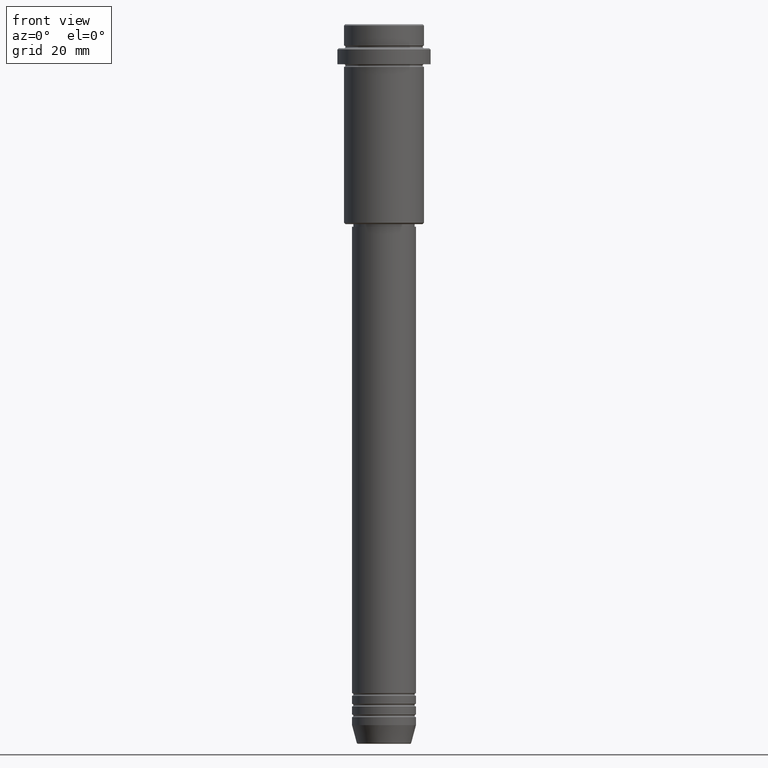
[diagram: clean part render]
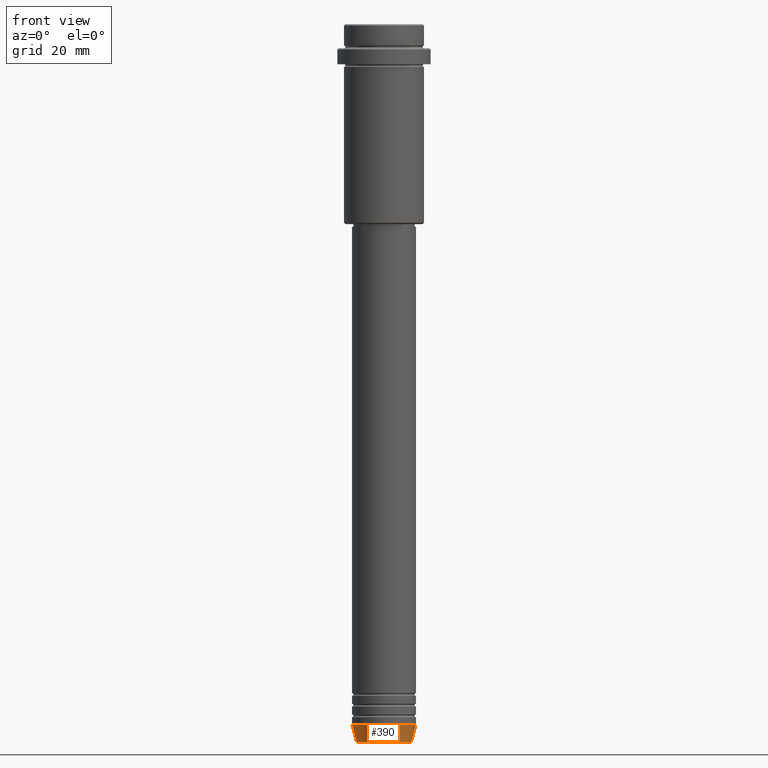
[diagram: same view with one face highlighted and labeled with its STEP entity id]
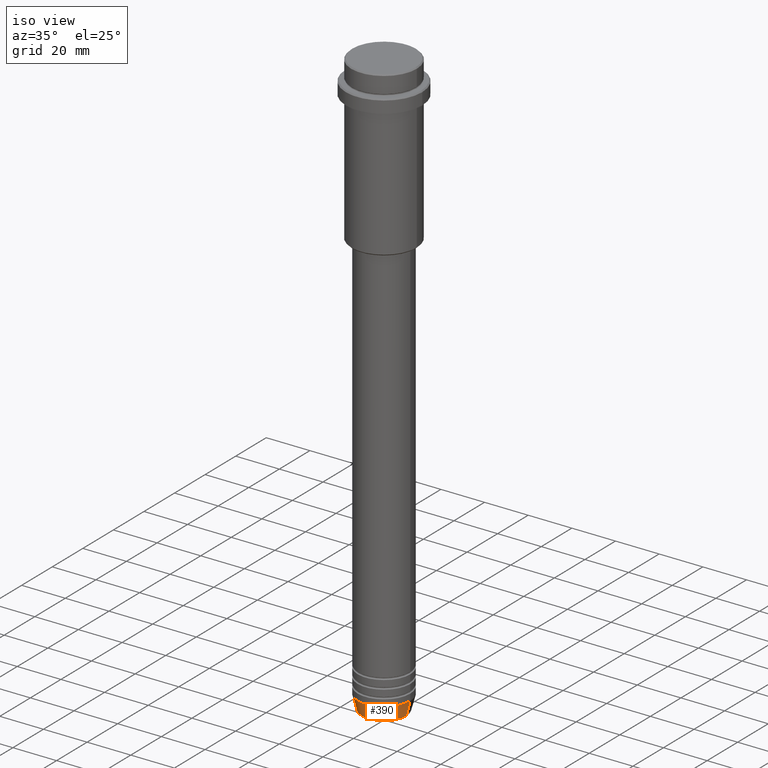
[diagram: same view with one face highlighted and labeled with its STEP entity id]
A machine part, front view. The second image highlights one B-rep face of the part: STEP entity #390.
A second angle (iso view) of the same face is appended — the face is thin or edge-on in the first view.
In plain terms, the highlighted conical surface has half-angle 15 deg.
Its self-contained STEP definition (entity closure, byte-faithful):
#15 = CIRCLE ( 'NONE', #681, 12.00000000000000000 ) ;
#82 = DIRECTION ( 'NONE',  ( 1.000000000000000000, 0.000000000000000000, 0.000000000000000000 ) ) ;
#112 = DIRECTION ( 'NONE',  ( 1.000000000000000000, 0.000000000000000000, 0.000000000000000000 ) ) ;
#117 = CARTESIAN_POINT ( 'NONE',  ( 0.000000000000000000, 0.000000000000000000, -269.6294095225512706 ) ) ;
#122 = CARTESIAN_POINT ( 'NONE',  ( -12.00000000000000000, 1.469576158976823947E-15, -263.0000000000000000 ) ) ;
#245 = DIRECTION ( 'NONE',  ( 0.2588190451025213501, 0.000000000000000000, 0.9659258262890680902 ) ) ;
#321 = DIRECTION ( 'NONE',  ( -0.000000000000000000, -0.000000000000000000, 1.000000000000000000 ) ) ;
#322 = ORIENTED_EDGE ( 'NONE', *, *, #897, .F. ) ;
#359 = CARTESIAN_POINT ( 'NONE',  ( 12.00000000000000000, 0.000000000000000000, -263.0000000000000000 ) ) ;
#390 = ADVANCED_FACE ( 'NONE', ( #1314 ), #1262, .T. ) ;
#421 = CARTESIAN_POINT ( 'NONE',  ( 0.000000000000000000, 0.000000000000000000, -263.0000000000000000 ) ) ;
#437 = VERTEX_POINT ( 'NONE', #986 ) ;
#481 = EDGE_CURVE ( 'NONE', #823, #437, #987, .T. ) ;
#533 = DIRECTION ( 'NONE',  ( 1.000000000000000000, 0.000000000000000000, 0.000000000000000000 ) ) ;
#667 = LINE ( 'NONE', #359, #1077 ) ;
#681 = AXIS2_PLACEMENT_3D ( 'NONE', #421, #1052, #82 ) ;
#687 = CARTESIAN_POINT ( 'NONE',  ( -12.00000000000000000, 1.469576158976823947E-15, -263.0000000000000000 ) ) ;
#785 = EDGE_CURVE ( 'NONE', #937, #1291, #15, .T. ) ;
#791 = DIRECTION ( 'NONE',  ( -0.2588190451025213501, 3.169619151431772337E-17, 0.9659258262890680902 ) ) ;
#823 = VERTEX_POINT ( 'NONE', #1070 ) ;
#875 = DIRECTION ( 'NONE',  ( -0.000000000000000000, -0.000000000000000000, 1.000000000000000000 ) ) ;
#897 = EDGE_CURVE ( 'NONE', #823, #937, #1005, .T. ) ;
#909 = EDGE_CURVE ( 'NONE', #437, #1291, #667, .T. ) ;
#937 = VERTEX_POINT ( 'NONE', #122 ) ;
#978 = CARTESIAN_POINT ( 'NONE',  ( 12.00000000000000000, 0.000000000000000000, -263.0000000000000000 ) ) ;
#986 = CARTESIAN_POINT ( 'NONE',  ( 10.22365507213719127, 0.000000000000000000, -269.6294095225512706 ) ) ;
#987 = CIRCLE ( 'NONE', #1285, 10.22365507213719127 ) ;
#1004 = EDGE_LOOP ( 'NONE', ( #322, #1394, #1145, #1250 ) ) ;
#1005 = LINE ( 'NONE', #687, #1156 ) ;
#1052 = DIRECTION ( 'NONE',  ( -0.000000000000000000, -0.000000000000000000, 1.000000000000000000 ) ) ;
#1070 = CARTESIAN_POINT ( 'NONE',  ( -10.22365507213719127, 1.360806402472382744E-15, -269.6294095225512706 ) ) ;
#1077 = VECTOR ( 'NONE', #245, 1000.000000000000000 ) ;
#1126 = AXIS2_PLACEMENT_3D ( 'NONE', #1208, #875, #112 ) ;
#1145 = ORIENTED_EDGE ( 'NONE', *, *, #909, .T. ) ;
#1156 = VECTOR ( 'NONE', #791, 1000.000000000000000 ) ;
#1208 = CARTESIAN_POINT ( 'NONE',  ( 0.000000000000000000, 0.000000000000000000, -263.0000000000000000 ) ) ;
#1250 = ORIENTED_EDGE ( 'NONE', *, *, #785, .F. ) ;
#1262 = CONICAL_SURFACE ( 'NONE', #1126, 12.00000000000000000, 0.2617993877991500740 ) ;
#1285 = AXIS2_PLACEMENT_3D ( 'NONE', #117, #321, #533 ) ;
#1291 = VERTEX_POINT ( 'NONE', #978 ) ;
#1314 = FACE_OUTER_BOUND ( 'NONE', #1004, .T. ) ;
#1394 = ORIENTED_EDGE ( 'NONE', *, *, #481, .T. ) ;